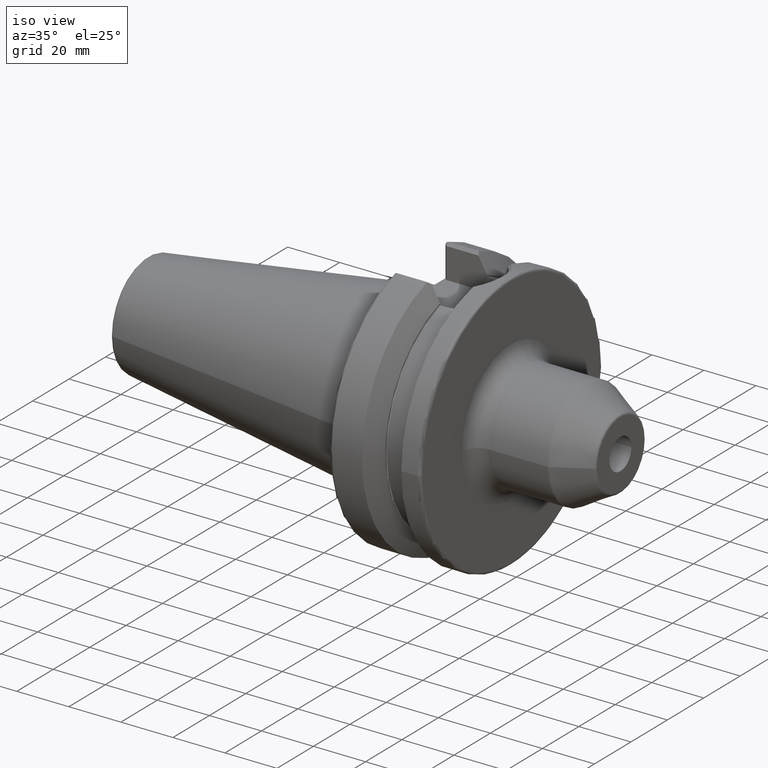
[diagram: clean part render]
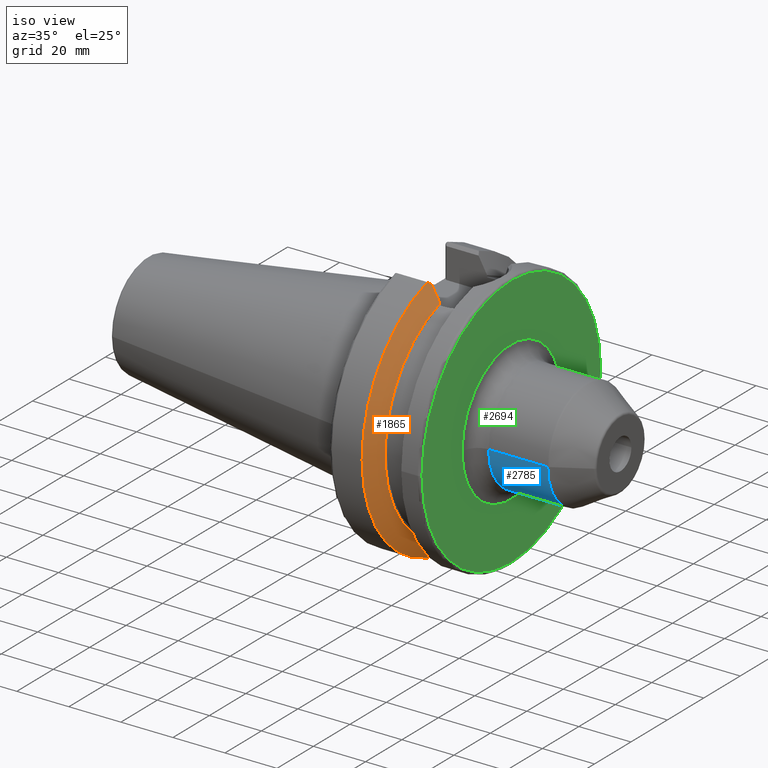
[diagram: same view with three faces highlighted in distinct colors, each labeled with its STEP entity id]
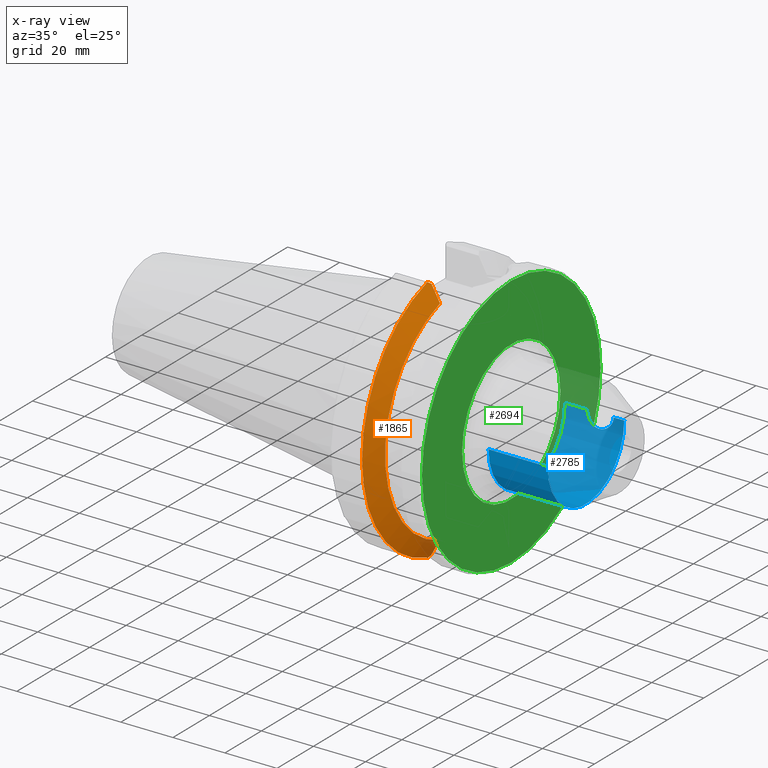
[diagram: x-ray of the same camera — body ghosted, the three highlighted faces saturated]
A machine part, iso view with three faces highlighted in distinct colors.
The next image is the same camera in x-ray (body ghosted, the three faces saturated) — at least one of them is partly hidden behind the body in this view.
Their STEP definitions:

[orange] entity #1865 — the highlighted conical surface has half-angle 60 deg.
#204=CARTESIAN_POINT('',(1.96625E1,0.E0,0.E0));
#205=DIRECTION('',(1.E0,0.E0,0.E0));
#206=DIRECTION('',(0.E0,-2.995626091154E-1,9.540766443111E-1));
#207=AXIS2_PLACEMENT_3D('',#204,#205,#206);
#209=CARTESIAN_POINT('',(1.566933176383E1,0.E0,0.E0));
#210=DIRECTION('',(1.E0,0.E0,0.E0));
#211=DIRECTION('',(0.E0,-2.837968869610E-1,9.588844179312E-1));
#212=AXIS2_PLACEMENT_3D('',#209,#210,#211);
#285=CARTESIAN_POINT('',(1.566933176383E1,-1.386327333875E1,-4.802665727057E1));
#286=CARTESIAN_POINT('',(1.576320934287E1,-1.370067260214E1,-4.790435382082E1));
#287=CARTESIAN_POINT('',(1.594902007039E1,-1.337794118947E1,-4.766160482756E1));
#288=CARTESIAN_POINT('',(1.613095630502E1,-1.306015522703E1,-4.742257565524E1));
#289=CARTESIAN_POINT('',(1.622095963665E1,-1.29025E1,-4.730399207105E1));
#332=CARTESIAN_POINT('',(1.96625E1,-1.29025E1,-4.109315892118E1));
#333=CARTESIAN_POINT('',(1.930371923002E1,-1.29025E1,-4.174449707739E1));
#334=CARTESIAN_POINT('',(1.857040869022E1,-1.29025E1,-4.307298282769E1));
#335=CARTESIAN_POINT('',(1.742403081668E1,-1.29025E1,-4.514175024416E1));
#336=CARTESIAN_POINT('',(1.662730270625E1,-1.29025E1,-4.657447448688E1));
#337=CARTESIAN_POINT('',(1.622095963665E1,-1.29025E1,-4.730399207105E1));
#533=CARTESIAN_POINT('',(1.640508297825E1,-1.29025E1,4.697335042340E1));
#534=CARTESIAN_POINT('',(1.678800997375E1,-1.29025E1,4.628553610571E1));
#535=CARTESIAN_POINT('',(1.753988026520E1,-1.29025E1,4.493290409157E1));
#536=CARTESIAN_POINT('',(1.862508060803E1,-1.29025E1,4.297399674455E1));
#537=CARTESIAN_POINT('',(1.932130614689E1,-1.29025E1,4.171256941858E1));
#538=CARTESIAN_POINT('',(1.96625E1,-1.29025E1,4.109315892118E1));
#561=CARTESIAN_POINT('',(1.640508297825E1,-1.29025E1,4.697335042340E1));
#562=CARTESIAN_POINT('',(1.628591605470E1,-1.311202428533E1,4.712984680879E1));
#563=CARTESIAN_POINT('',(1.604413623418E1,-1.353551919472E1,4.744616060719E1));
#564=CARTESIAN_POINT('',(1.579542715791E1,-1.396789325780E1,4.776910635976E1));
#565=CARTESIAN_POINT('',(1.566933176383E1,-1.418629688696E1,4.793223484134E1));
#1356=CARTESIAN_POINT('',(1.96625E1,-1.29025E1,4.109315892118E1));
#1357=CARTESIAN_POINT('',(1.96625E1,-1.29025E1,-4.109315892118E1));
#1358=VERTEX_POINT('',#1356);
#1359=VERTEX_POINT('',#1357);
#1463=VERTEX_POINT('',#533);
#1471=VERTEX_POINT('',#337);
#1474=CARTESIAN_POINT('',(1.566933176383E1,-1.418629688696E1,4.793223484134E1));
#1475=CARTESIAN_POINT('',(1.566933176383E1,-1.386327333875E1,
-4.802665727057E1));
#1476=VERTEX_POINT('',#1474);
#1477=VERTEX_POINT('',#1475);
#1847=CARTESIAN_POINT('',(1.766591588191E1,0.E0,0.E0));
#1848=DIRECTION('',(-1.E0,0.E0,0.E0));
#1849=DIRECTION('',(0.E0,1.E0,0.E0));
#1850=AXIS2_PLACEMENT_3D('',#1847,#1848,#1849);
#1851=CONICAL_SURFACE('',#1850,4.652931486589E1,6.E1);
#1852=ORIENTED_EDGE('',*,*,#1818,.T.);
#1854=ORIENTED_EDGE('',*,*,#1853,.T.);
#1856=ORIENTED_EDGE('',*,*,#1855,.F.);
#1858=ORIENTED_EDGE('',*,*,#1857,.F.);
#1860=ORIENTED_EDGE('',*,*,#1859,.F.);
#1862=ORIENTED_EDGE('',*,*,#1861,.T.);
#1863=EDGE_LOOP('',(#1852,#1854,#1856,#1858,#1860,#1862));
#1864=FACE_OUTER_BOUND('',#1863,.F.);
#1865=ADVANCED_FACE('',(#1864),#1851,.T.);
#208=CIRCLE('',#207,4.307112973177E1);
#213=CIRCLE('',#212,4.99875E1);
#290=B_SPLINE_CURVE_WITH_KNOTS('',3,(#285,#286,#287,#288,#289),.UNSPECIFIED.,
.F.,.F.,(4,1,4),(0.E0,5.E-1,1.E0),.UNSPECIFIED.);
#338=B_SPLINE_CURVE_WITH_KNOTS('',3,(#332,#333,#334,#335,#336,#337),
.UNSPECIFIED.,.F.,.F.,(4,1,1,4),(0.E0,3.333333333333E-1,6.666666666667E-1,1.E0),
.UNSPECIFIED.);
#539=B_SPLINE_CURVE_WITH_KNOTS('',3,(#533,#534,#535,#536,#537,#538),
.UNSPECIFIED.,.F.,.F.,(4,1,1,4),(0.E0,3.333333333333E-1,6.666666666667E-1,1.E0),
.UNSPECIFIED.);
#566=B_SPLINE_CURVE_WITH_KNOTS('',3,(#561,#562,#563,#564,#565),.UNSPECIFIED.,
.F.,.F.,(4,1,4),(0.E0,5.E-1,1.E0),.UNSPECIFIED.);
#1818=EDGE_CURVE('',#1358,#1359,#208,.T.);
#1853=EDGE_CURVE('',#1359,#1471,#338,.T.);
#1855=EDGE_CURVE('',#1477,#1471,#290,.T.);
#1857=EDGE_CURVE('',#1476,#1477,#213,.T.);
#1859=EDGE_CURVE('',#1463,#1476,#566,.T.);
#1861=EDGE_CURVE('',#1463,#1358,#539,.T.);

[blue] entity #2785 — the highlighted cylindrical surface (partial cylindrical patch) has radius 21 mm, axis along (1, 0, 0).
#897=CARTESIAN_POINT('',(6.673205080757E1,0.E0,0.E0));
#898=DIRECTION('',(-1.E0,0.E0,0.E0));
#899=DIRECTION('',(0.E0,1.E0,0.E0));
#900=AXIS2_PLACEMENT_3D('',#897,#898,#899);
#902=DIRECTION('',(-1.E0,0.E0,4.951894515745E-13));
#903=VECTOR('',#902,4.132050807569E0);
#904=CARTESIAN_POINT('',(6.673205080757E1,2.1E1,-2.044862094139E-12));
#905=LINE('',#904,#903);
#906=CARTESIAN_POINT('',(5.24E1,2.1E1,0.E0));
#907=CARTESIAN_POINT('',(5.24E1,2.1E1,-2.744624799435E-1));
#908=CARTESIAN_POINT('',(5.244356679518E1,2.098935456597E1,-8.170089716600E-1));
#909=CARTESIAN_POINT('',(5.264148681086E1,2.094216048238E1,-1.623239867789E0));
#910=CARTESIAN_POINT('',(5.296610967518E1,2.086865043424E1,-2.382584430216E0));
#911=CARTESIAN_POINT('',(5.340044685033E1,2.077790483398E1,-3.069479094353E0));
#912=CARTESIAN_POINT('',(5.393694123975E1,2.067787455229E1,-3.679266205251E0));
#913=CARTESIAN_POINT('',(5.457482356587E1,2.057650373082E1,-4.205517751413E0));
#914=CARTESIAN_POINT('',(5.530386366762E1,2.048468197871E1,-4.628562570745E0));
#915=CARTESIAN_POINT('',(5.610259854264E1,2.041335200816E1,-4.930970126979E0));
#916=CARTESIAN_POINT('',(5.699548819060E1,2.037055585054E1,-5.103145340052E0));
#917=CARTESIAN_POINT('',(5.792781180674E1,2.036875288776E1,-5.110250013189E0));
#918=CARTESIAN_POINT('',(5.882637984105E1,2.040849867768E1,-4.950826767973E0));
#919=CARTESIAN_POINT('',(5.963498846432E1,2.047806907860E1,-4.657535997821E0));
#920=CARTESIAN_POINT('',(6.037685955489E1,2.056953778434E1,-4.239363992704E0));
#921=CARTESIAN_POINT('',(6.102820196302E1,2.067177696512E1,-3.713440905717E0));
#922=CARTESIAN_POINT('',(6.157647417154E1,2.077327945800E1,-3.100963467286E0));
#923=CARTESIAN_POINT('',(6.202104581865E1,2.086581194103E1,-2.408010565450E0));
#924=CARTESIAN_POINT('',(6.235286873713E1,2.094082934388E1,-1.641603940258E0));
#925=CARTESIAN_POINT('',(6.255538402032E1,2.098909636732E1,-8.266642267356E-1));
#926=CARTESIAN_POINT('',(6.26E1,2.1E1,-2.777938376562E-1));
#927=CARTESIAN_POINT('',(6.26E1,2.1E1,0.E0));
#929=DIRECTION('',(-1.E0,0.E0,1.719053140577E-13));
#930=VECTOR('',#929,8.4E0);
#931=CARTESIAN_POINT('',(5.24E1,2.1E1,0.E0));
#932=LINE('',#931,#930);
#933=CARTESIAN_POINT('',(4.4E1,0.E0,0.E0));
#934=DIRECTION('',(1.E0,0.E0,0.E0));
#935=DIRECTION('',(0.E0,-1.E0,0.E0));
#936=AXIS2_PLACEMENT_3D('',#933,#934,#935);
#938=DIRECTION('',(-1.E0,0.E0,-1.534286562389E-13));
#939=VECTOR('',#938,2.273205080757E1);
#940=CARTESIAN_POINT('',(6.673205080757E1,-2.1E1,2.039552472754E-12));
#941=LINE('',#940,#939);
#1534=CARTESIAN_POINT('',(6.26E1,2.1E1,0.E0));
#1536=VERTEX_POINT('',#1534);
#1538=CARTESIAN_POINT('',(5.24E1,2.1E1,0.E0));
#1540=VERTEX_POINT('',#1538);
#1559=CARTESIAN_POINT('',(4.4E1,-2.1E1,0.E0));
#1560=CARTESIAN_POINT('',(4.4E1,2.1E1,0.E0));
#1561=VERTEX_POINT('',#1559);
#1562=VERTEX_POINT('',#1560);
#1563=CARTESIAN_POINT('',(6.673205080757E1,2.1E1,0.E0));
#1564=CARTESIAN_POINT('',(6.673205080757E1,-2.1E1,0.E0));
#1565=VERTEX_POINT('',#1563);
#1566=VERTEX_POINT('',#1564);
#2771=CARTESIAN_POINT('',(3.59E1,0.E0,0.E0));
#2772=DIRECTION('',(1.E0,0.E0,0.E0));
#2773=DIRECTION('',(0.E0,-1.E0,0.E0));
#2774=AXIS2_PLACEMENT_3D('',#2771,#2772,#2773);
#2775=CYLINDRICAL_SURFACE('',#2774,2.1E1);
#2776=ORIENTED_EDGE('',*,*,#2762,.F.);
#2777=ORIENTED_EDGE('',*,*,#2737,.T.);
#2779=ORIENTED_EDGE('',*,*,#2778,.F.);
#2780=ORIENTED_EDGE('',*,*,#2733,.T.);
#2781=ORIENTED_EDGE('',*,*,#2703,.F.);
#2782=ORIENTED_EDGE('',*,*,#2730,.F.);
#2783=EDGE_LOOP('',(#2776,#2777,#2779,#2780,#2781,#2782));
#2784=FACE_OUTER_BOUND('',#2783,.F.);
#2785=ADVANCED_FACE('',(#2784),#2775,.T.);
#901=CIRCLE('',#900,2.1E1);
#928=B_SPLINE_CURVE_WITH_KNOTS('',3,(#906,#907,#908,#909,#910,#911,#912,#913,
#914,#915,#916,#917,#918,#919,#920,#921,#922,#923,#924,#925,#926,#927),
.UNSPECIFIED.,.F.,.F.,(4,1,1,1,1,1,1,1,1,1,1,1,1,1,1,1,1,1,1,4),(0.E0,
5.263157894737E-2,1.052631578947E-1,1.578947368421E-1,2.105263157895E-1,
2.631578947368E-1,3.157894736842E-1,3.684210526316E-1,4.210526315789E-1,
4.736842105263E-1,5.263157894737E-1,5.789473684211E-1,6.315789473684E-1,
6.842105263158E-1,7.368421052632E-1,7.894736842105E-1,8.421052631579E-1,
8.947368421053E-1,9.473684210526E-1,1.E0),.UNSPECIFIED.);
#937=CIRCLE('',#936,2.1E1);
#2703=EDGE_CURVE('',#1561,#1562,#937,.T.);
#2730=EDGE_CURVE('',#1566,#1561,#941,.T.);
#2733=EDGE_CURVE('',#1540,#1562,#932,.T.);
#2737=EDGE_CURVE('',#1565,#1536,#905,.T.);
#2762=EDGE_CURVE('',#1565,#1566,#901,.T.);
#2778=EDGE_CURVE('',#1540,#1536,#928,.T.);

[green] entity #2694 — the highlighted planar face has unit normal (1, 0, 0).
#814=CARTESIAN_POINT('',(3.8E1,0.E0,0.E0));
#815=DIRECTION('',(1.E0,0.E0,0.E0));
#816=DIRECTION('',(0.E0,1.E0,0.E0));
#817=AXIS2_PLACEMENT_3D('',#814,#815,#816);
#829=CARTESIAN_POINT('',(3.8E1,0.E0,0.E0));
#830=DIRECTION('',(-1.E0,0.E0,0.E0));
#831=DIRECTION('',(0.E0,1.E0,0.E0));
#832=AXIS2_PLACEMENT_3D('',#829,#830,#831);
#834=CARTESIAN_POINT('',(3.8E1,0.E0,0.E0));
#835=DIRECTION('',(1.E0,0.E0,0.E0));
#836=DIRECTION('',(0.E0,-1.E0,0.E0));
#837=AXIS2_PLACEMENT_3D('',#834,#835,#836);
#839=CARTESIAN_POINT('',(3.8E1,0.E0,0.E0));
#840=DIRECTION('',(1.E0,0.E0,0.E0));
#841=DIRECTION('',(0.E0,1.E0,0.E0));
#842=AXIS2_PLACEMENT_3D('',#839,#840,#841);
#1438=CARTESIAN_POINT('',(3.8E1,4.89875E1,0.E0));
#1439=VERTEX_POINT('',#1438);
#1440=CARTESIAN_POINT('',(3.8E1,-4.89875E1,-1.199847701465E-14));
#1441=VERTEX_POINT('',#1440);
#1555=CARTESIAN_POINT('',(3.8E1,-2.7E1,0.E0));
#1556=CARTESIAN_POINT('',(3.8E1,2.7E1,0.E0));
#1557=VERTEX_POINT('',#1555);
#1558=VERTEX_POINT('',#1556);
#2679=CARTESIAN_POINT('',(3.8E1,0.E0,0.E0));
#2680=DIRECTION('',(1.E0,0.E0,0.E0));
#2681=DIRECTION('',(0.E0,-1.E0,0.E0));
#2682=AXIS2_PLACEMENT_3D('',#2679,#2680,#2681);
#2683=PLANE('',#2682);
#2684=ORIENTED_EDGE('',*,*,#2674,.T.);
#2685=ORIENTED_EDGE('',*,*,#2658,.F.);
#2686=EDGE_LOOP('',(#2684,#2685));
#2687=FACE_OUTER_BOUND('',#2686,.F.);
#2689=ORIENTED_EDGE('',*,*,#2688,.T.);
#2691=ORIENTED_EDGE('',*,*,#2690,.T.);
#2692=EDGE_LOOP('',(#2689,#2691));
#2693=FACE_BOUND('',#2692,.F.);
#2694=ADVANCED_FACE('',(#2687,#2693),#2683,.T.);
#818=CIRCLE('',#817,4.89875E1);
#833=CIRCLE('',#832,4.89875E1);
#838=CIRCLE('',#837,2.7E1);
#843=CIRCLE('',#842,2.7E1);
#2658=EDGE_CURVE('',#1439,#1441,#818,.T.);
#2674=EDGE_CURVE('',#1439,#1441,#833,.T.);
#2688=EDGE_CURVE('',#1557,#1558,#838,.T.);
#2690=EDGE_CURVE('',#1558,#1557,#843,.T.);